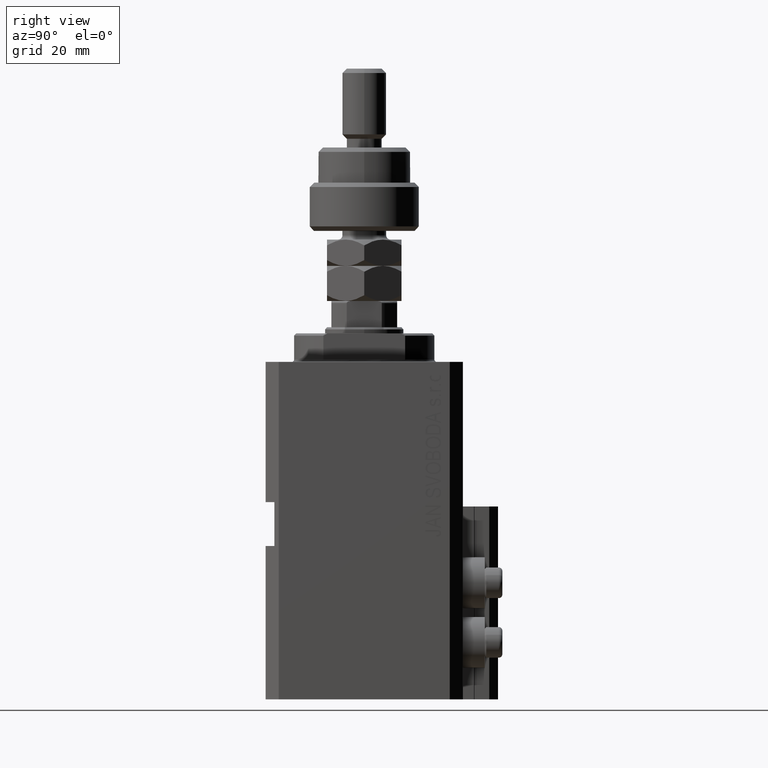
[diagram: clean part render]
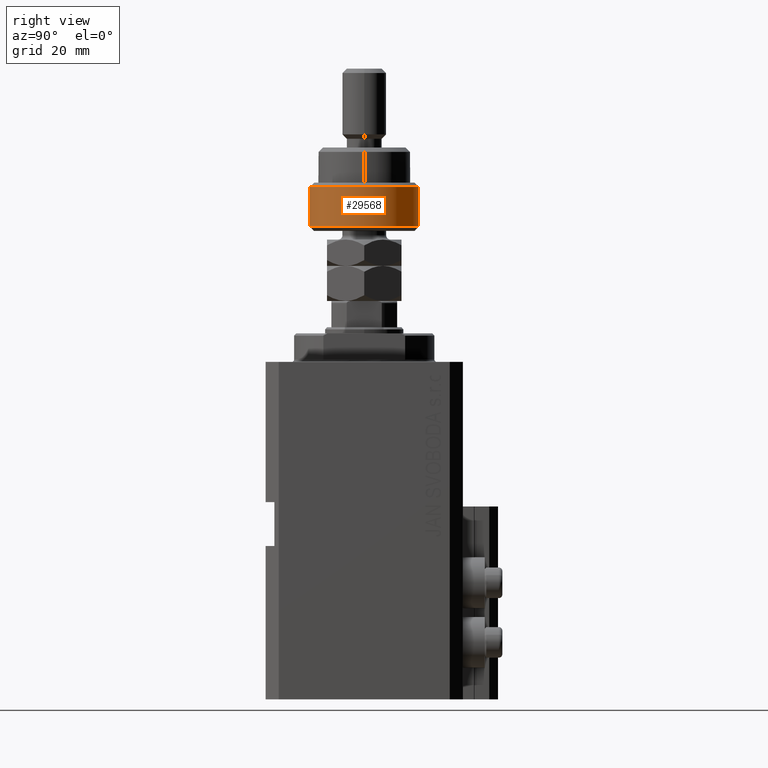
[diagram: same view with one face highlighted and labeled with its STEP entity id]
A machine part, right view. The second image highlights one B-rep face of the part: STEP entity #29568.
In plain terms, the highlighted cylindrical surface (partial cylindrical patch) has radius 12.5 mm, axis along (-0, -0, -1).
Its self-contained STEP definition (entity closure, byte-faithful):
#87 = EDGE_CURVE ( 'NONE', #18055, #47809, #8528, .T. ) ;
#2981 = ORIENTED_EDGE ( 'NONE', *, *, #28838, .T. ) ;
#3089 = CARTESIAN_POINT ( 'NONE',  ( -11.22497216032182088, -5.500000000000007105, 10.00000000000000000 ) ) ;
#3437 = DIRECTION ( 'NONE',  ( 1.000000000000000000, 0.000000000000000000, 0.000000000000000000 ) ) ;
#3946 = EDGE_CURVE ( 'NONE', #43772, #10502, #46617, .T. ) ;
#4747 = CARTESIAN_POINT ( 'NONE',  ( -11.22497216032182443, 5.500000000000000000, 0.9999999999999956701 ) ) ;
#6774 = ORIENTED_EDGE ( 'NONE', *, *, #3946, .T. ) ;
#7992 = EDGE_CURVE ( 'NONE', #18055, #10502, #11290, .T. ) ;
#8202 = DIRECTION ( 'NONE',  ( 1.000000000000000000, 0.000000000000000000, 0.000000000000000000 ) ) ;
#8341 = DIRECTION ( 'NONE',  ( -0.000000000000000000, -0.000000000000000000, 1.000000000000000000 ) ) ;
#8456 = CARTESIAN_POINT ( 'NONE',  ( 0.000000000000000000, 0.000000000000000000, 0.9999999999999956701 ) ) ;
#8528 = CIRCLE ( 'NONE', #14960, 12.50000000000000000 ) ;
#9105 = CARTESIAN_POINT ( 'NONE',  ( 0.000000000000000000, 0.000000000000000000, 0.9999999999999956701 ) ) ;
#10137 = ORIENTED_EDGE ( 'NONE', *, *, #38507, .T. ) ;
#10502 = VERTEX_POINT ( 'NONE', #4747 ) ;
#11290 = LINE ( 'NONE', #19636, #37021 ) ;
#12864 = DIRECTION ( 'NONE',  ( 1.000000000000000000, 0.000000000000000000, 0.000000000000000000 ) ) ;
#13614 = VECTOR ( 'NONE', #45566, 1000.000000000000000 ) ;
#13869 = AXIS2_PLACEMENT_3D ( 'NONE', #9105, #8341, #12864 ) ;
#14463 = CARTESIAN_POINT ( 'NONE',  ( -11.22497216032182088, -5.500000000000007105, 0.9999999999999956701 ) ) ;
#14960 = AXIS2_PLACEMENT_3D ( 'NONE', #38045, #49696, #3437 ) ;
#15933 = AXIS2_PLACEMENT_3D ( 'NONE', #8456, #47390, #8202 ) ;
#16641 = EDGE_LOOP ( 'NONE', ( #19969, #34368, #2981, #10137, #6774 ) ) ;
#18055 = VERTEX_POINT ( 'NONE', #35348 ) ;
#19636 = CARTESIAN_POINT ( 'NONE',  ( -11.22497216032182443, 5.500000000000000000, 12.50000000000000000 ) ) ;
#19969 = ORIENTED_EDGE ( 'NONE', *, *, #7992, .F. ) ;
#22407 = AXIS2_PLACEMENT_3D ( 'NONE', #23931, #39340, #46432 ) ;
#23931 = CARTESIAN_POINT ( 'NONE',  ( 0.000000000000000000, 0.000000000000000000, 11.00000000000000000 ) ) ;
#26728 = DIRECTION ( 'NONE',  ( -0.000000000000000000, -0.000000000000000000, -1.000000000000000000 ) ) ;
#27460 = CYLINDRICAL_SURFACE ( 'NONE', #22407, 12.50000000000000000 ) ;
#28838 = EDGE_CURVE ( 'NONE', #47809, #36551, #30144, .T. ) ;
#29568 = ADVANCED_FACE ( 'NONE', ( #31009 ), #27460, .T. ) ;
#30144 = LINE ( 'NONE', #45315, #13614 ) ;
#31009 = FACE_OUTER_BOUND ( 'NONE', #16641, .T. ) ;
#34055 = CIRCLE ( 'NONE', #13869, 12.50000000000000000 ) ;
#34368 = ORIENTED_EDGE ( 'NONE', *, *, #87, .T. ) ;
#35348 = CARTESIAN_POINT ( 'NONE',  ( -11.22497216032182443, 5.500000000000000000, 10.00000000000000000 ) ) ;
#36551 = VERTEX_POINT ( 'NONE', #14463 ) ;
#37021 = VECTOR ( 'NONE', #26728, 1000.000000000000000 ) ;
#38045 = CARTESIAN_POINT ( 'NONE',  ( 0.000000000000000000, 0.000000000000000000, 10.00000000000000000 ) ) ;
#38507 = EDGE_CURVE ( 'NONE', #36551, #43772, #34055, .T. ) ;
#39340 = DIRECTION ( 'NONE',  ( -0.000000000000000000, -0.000000000000000000, -1.000000000000000000 ) ) ;
#43772 = VERTEX_POINT ( 'NONE', #48855 ) ;
#45315 = CARTESIAN_POINT ( 'NONE',  ( -11.22497216032182088, -5.500000000000007105, 12.50000000000000000 ) ) ;
#45566 = DIRECTION ( 'NONE',  ( -0.000000000000000000, -0.000000000000000000, -1.000000000000000000 ) ) ;
#46432 = DIRECTION ( 'NONE',  ( -1.000000000000000000, 0.000000000000000000, 0.000000000000000000 ) ) ;
#46617 = CIRCLE ( 'NONE', #15933, 12.50000000000000000 ) ;
#47390 = DIRECTION ( 'NONE',  ( -0.000000000000000000, -0.000000000000000000, 1.000000000000000000 ) ) ;
#47809 = VERTEX_POINT ( 'NONE', #3089 ) ;
#48855 = CARTESIAN_POINT ( 'NONE',  ( 12.50000000000000000, 0.000000000000000000, 0.9999999999999956701 ) ) ;
#49696 = DIRECTION ( 'NONE',  ( 0.000000000000000000, 0.000000000000000000, -1.000000000000000000 ) ) ;